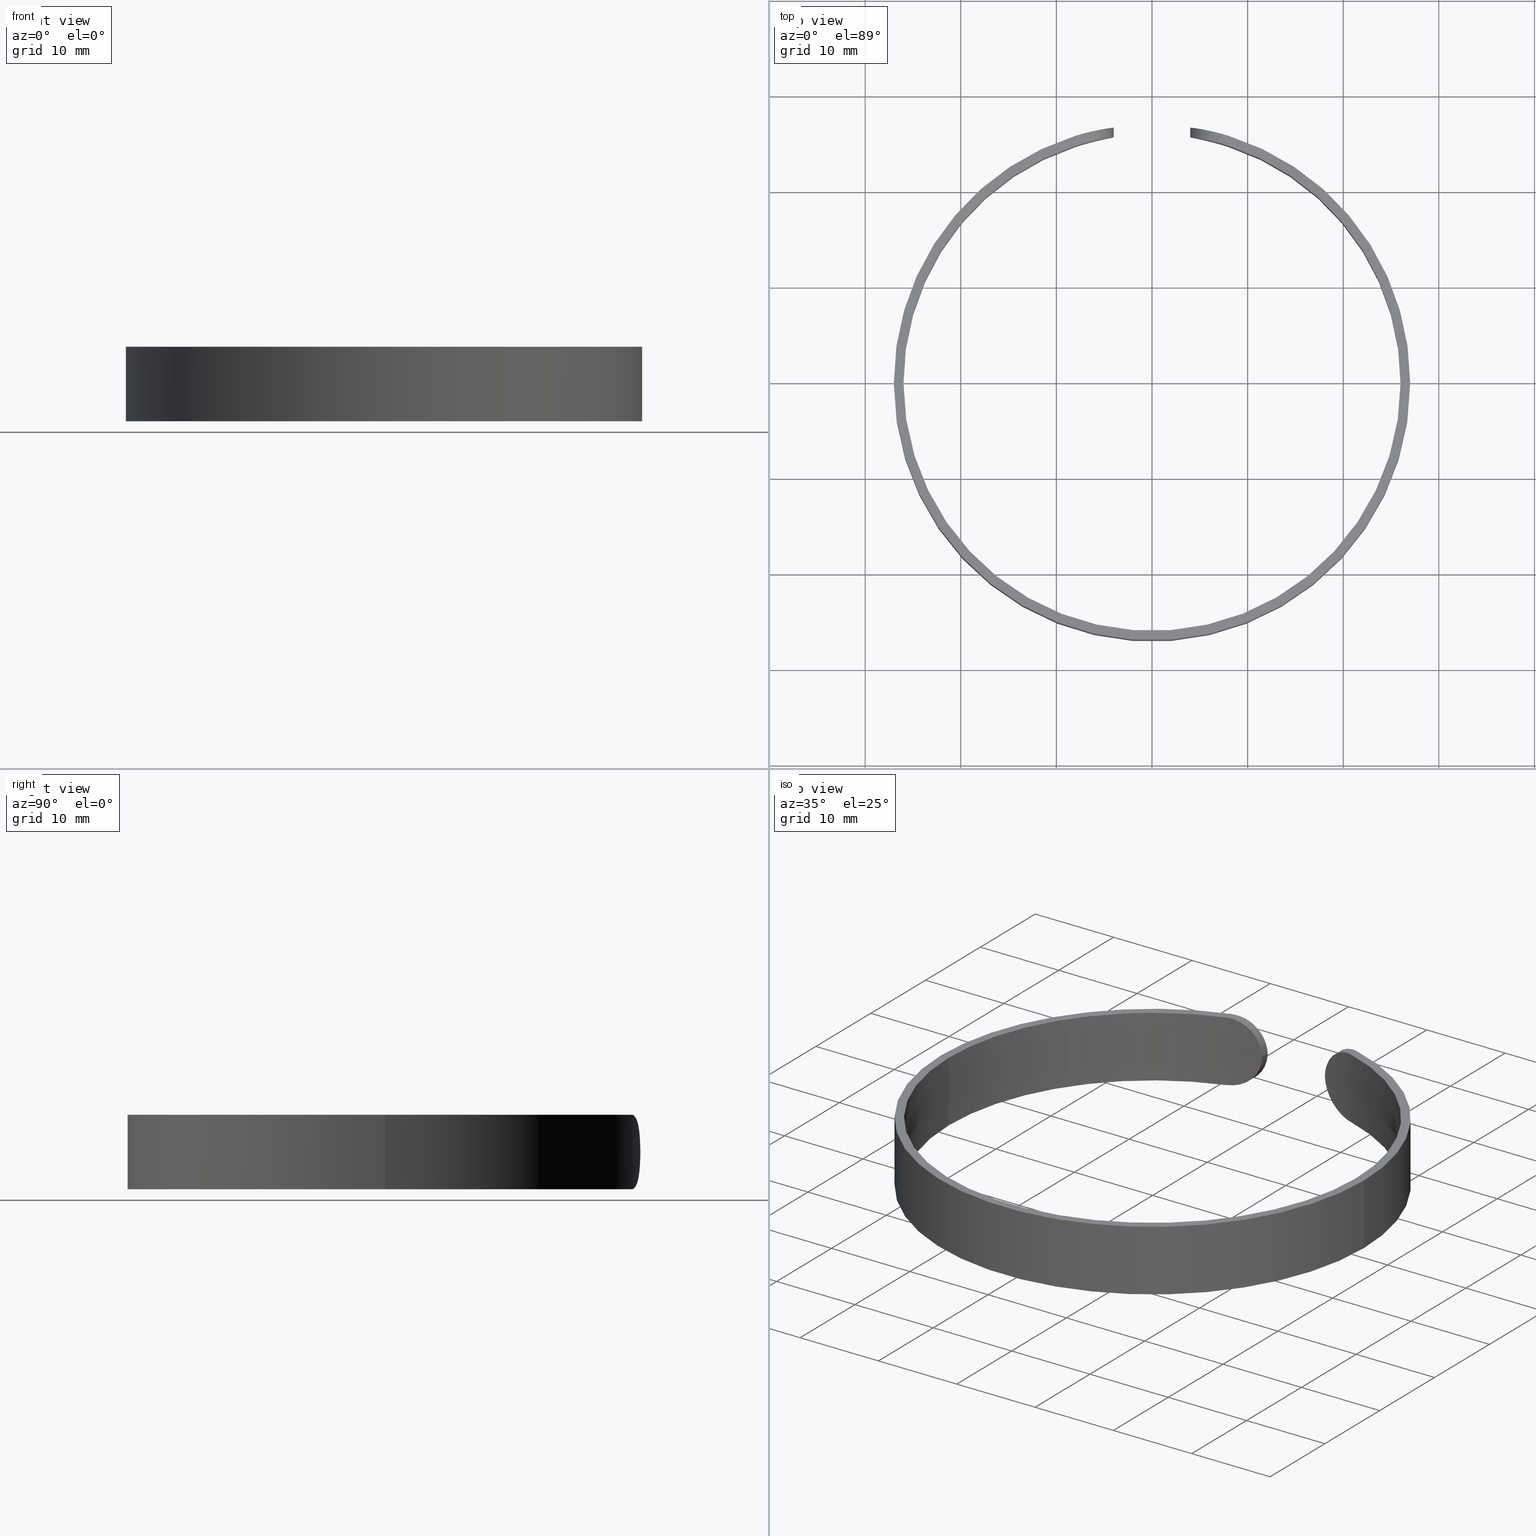
[diagram: canonical four-view strip — front | top / right | iso, engineering-drawing reading convention]
A machine part, canonical four-view strip (front | top / right | iso — engineering-drawing reading convention). The complete STEP part file that produces these views, byte-faithful:
ISO-10303-21;
HEADER;
FILE_DESCRIPTION (( 'STEP AP203' ),
    '1' );
FILE_NAME ('515000.STEP',
    '2019-09-26T07:17:48',
    ( '' ),
    ( '' ),
    'SwSTEP 2.0',
    'SolidWorks 2016',
    '' );
FILE_SCHEMA (( 'CONFIG_CONTROL_DESIGN' ));
ENDSEC;

DATA;
#1 = EDGE_LOOP ( 'NONE', ( #592, #186, #442, #582, #383, #9, #589, #154 ) ) ;
#2 = PERSON_AND_ORGANIZATION_ROLE ( 'design_owner' ) ;
#3 = PERSON_AND_ORGANIZATION_ROLE ( 'creator' ) ;
#4 = APPLICATION_PROTOCOL_DEFINITION ( 'international standard', 'config_control_design', 1994, #52 ) ;
#5 = PERSON ( 'δָ��', 'δָ��', 'δָ��', ('δָ��'), ('δָ��'), ('δָ��') ) ;
#6 = PERSON_AND_ORGANIZATION ( #5, #153 ) ;
#7 = DIRECTION ( 'NONE',  ( -1.000000000000000000, 5.204170427930421300E-015, 0.0000000000000000000 ) ) ;
#8 = CYLINDRICAL_SURFACE ( 'NONE', #21, 25.99999999999999600 ) ;
#9 = ORIENTED_EDGE ( 'NONE', *, *, #540, .T. ) ;
#10 = ORIENTED_EDGE ( 'NONE', *, *, #355, .T. ) ;
#11 = DIRECTION ( 'NONE',  ( 1.000000000000000000, 0.0000000000000000000, 0.0000000000000000000 ) ) ;
#12 = DIRECTION ( 'NONE',  ( 1.000000000000000000, 0.0000000000000000000, -0.0000000000000000000 ) ) ;
#13 = AXIS2_PLACEMENT_3D ( 'NONE', #501, #200, #353 ) ;
#14 = CARTESIAN_POINT ( 'NONE',  ( 5.049572312465119100, 25.50565188433558500, 6.513281062536298900 ) ) ;
#15 = PLANE ( 'NONE',  #343 ) ;
#16 = APPROVAL_DATE_TIME ( #381, #264 ) ;
#17 = FACE_OUTER_BOUND ( 'NONE', #358, .T. ) ;
#18 = CARTESIAN_POINT ( 'NONE',  ( -4.450187752983521400, 25.61654353332943800, 2.138150791149620900 ) ) ;
#19 = ORIENTED_EDGE ( 'NONE', *, *, #113, .F. ) ;
#20 = CARTESIAN_POINT ( 'NONE',  ( -8.000000000000010700, 24.73863375370595500, 7.799999999999999800 ) ) ;
#21 = AXIS2_PLACEMENT_3D ( 'NONE', #249, #151, #244 ) ;
#22 = CARTESIAN_POINT ( 'NONE',  ( -7.000907081161646100, 26.07784237712200000, 0.1185271067502578100 ) ) ;
#23 = DIRECTION ( 'NONE',  ( -1.000000000000000000, 0.0000000000000000000, 0.0000000000000000000 ) ) ;
#24 = PERSON_AND_ORGANIZATION ( #5, #153 ) ;
#25 = CYLINDRICAL_SURFACE ( 'NONE', #141, 25.99999999999999600 ) ;
#26 = ADVANCED_FACE ( 'NONE', ( #147 ), #627, .T. ) ;
#27 = VERTEX_POINT ( 'NONE', #599 ) ;
#28 = CARTESIAN_POINT ( 'NONE',  ( 27.00000000000000000, 3.306546357697853700E-015, 7.799999999999999800 ) ) ;
#29 = DIRECTION ( 'NONE',  ( -0.0000000000000000000, -0.0000000000000000000, -1.000000000000000000 ) ) ;
#30 = LOCAL_TIME ( 15, 17, 48.00000000000000000, #152 ) ;
#31 = CARTESIAN_POINT ( 'NONE',  ( 5.047872861668781600, 25.50598163043550700, 1.288661607061337000 ) ) ;
#32 = ORIENTED_EDGE ( 'NONE', *, *, #405, .T. ) ;
#33 = VERTEX_POINT ( 'NONE', #245 ) ;
#34 =( GEOMETRIC_REPRESENTATION_CONTEXT ( 3 ) GLOBAL_UNCERTAINTY_ASSIGNED_CONTEXT ( ( #377 ) ) GLOBAL_UNIT_ASSIGNED_CONTEXT ( ( #252, #196, #149 ) ) REPRESENTATION_CONTEXT ( 'NONE', 'WORKASPACE' ) );
#35 = CARTESIAN_POINT ( 'NONE',  ( 4.001250195373553500, 25.72034679967168800, 3.899999999999999900 ) ) ;
#36 = CARTESIAN_POINT ( 'NONE',  ( 7.999999999999986700, 24.73863375370596200, 0.0000000000000000000 ) ) ;
#37 = CARTESIAN_POINT ( 'NONE',  ( 4.237548822465045700, 25.65257616834034600, 2.617273710571744500 ) ) ;
#38 = COORDINATED_UNIVERSAL_TIME_OFFSET ( 8, 0, .AHEAD. ) ;
#39 = VECTOR ( 'NONE', #82, 1000.000000000000000 ) ;
#40 = VERTEX_POINT ( 'NONE', #59 ) ;
#41 = CARTESIAN_POINT ( 'NONE',  ( 4.007819870348314800, 26.70088807542985900, 4.162704865217397900 ) ) ;
#42 = CARTESIAN_POINT ( 'NONE',  ( 7.999999999999994700, 25.78759391645525400, 0.0000000000000000000 ) ) ;
#43 = AXIS2_PLACEMENT_3D ( 'NONE', #449, #542, #248 ) ;
#44 = CARTESIAN_POINT ( 'NONE',  ( 6.058559701304446300, 26.31240341939475500, 0.4933939463681459300 ) ) ;
#45 = PERSON_AND_ORGANIZATION ( #5, #153 ) ;
#46 = LINE ( 'NONE', #398, #279 ) ;
#47 = VERTEX_POINT ( 'NONE', #148 ) ;
#48 = EDGE_CURVE ( 'NONE', #434, #40, #399, .T. ) ;
#49 = B_SPLINE_CURVE_WITH_KNOTS ( 'NONE', 3,
 ( #163, #64, #317, #266, #63, #256, #611, #199, #511, #311, #201, #419, #72, #70, #356, #109, #614, #315 ),
 .UNSPECIFIED., .F., .F.,
 ( 4, 2, 2, 2, 2, 2, 2, 2, 4 ),
 ( 9.879209427596740300E-005, 0.0008800166075160012200, 0.001661241120756035100, 0.002442465633996069200, 0.003223690147236103100, 0.004004914660476136500, 0.004786139173716170800, 0.005567363686956204200, 0.006348588200196238600 ),
 .UNSPECIFIED. ) ;
#50 = CARTESIAN_POINT ( 'NONE',  ( -8.000000000000010700, 24.73863375370595500, 0.0000000000000000000 ) ) ;
#51 = DIRECTION ( 'NONE',  ( 1.000000000000000000, 0.0000000000000000000, 0.0000000000000000000 ) ) ;
#52 = APPLICATION_CONTEXT ( 'configuration controlled 3d designs of mechanical parts and assemblies' ) ;
#53 = B_SPLINE_CURVE_WITH_KNOTS ( 'NONE', 3,
 ( #522, #524, #527, #384, #387, #385, #485, #178, #225, #478, #135, #574, #175, #229, #526, #232, #338, #577 ),
 .UNSPECIFIED., .F., .F.,
 ( 4, 2, 2, 2, 2, 2, 2, 2, 4 ),
 ( 0.0000000000000000000, 0.0007802975029534268400, 0.001560595005906853700, 0.002340892508860280500, 0.003121190011813707400, 0.003901487514767134200, 0.004681785017720561100, 0.005462082520673988300, 0.006242380023627414800 ),
 .UNSPECIFIED. ) ;
#54 = AXIS2_PLACEMENT_3D ( 'NONE', #495, #188, #51 ) ;
#55 = PERSON_AND_ORGANIZATION ( #5, #153 ) ;
#56 = PERSON_AND_ORGANIZATION ( #5, #153 ) ;
#57 = CARTESIAN_POINT ( 'NONE',  ( 7.999999999999774400, -6.859361742516716200E-014, 0.0000000000000000000 ) ) ;
#58 = ORIENTED_EDGE ( 'NONE', *, *, #370, .F. ) ;
#59 = CARTESIAN_POINT ( 'NONE',  ( 27.00000000000000000, 3.306546357697853700E-015, 7.799999999999999800 ) ) ;
#60 = DATE_TIME_ROLE ( 'creation_date' ) ;
#61 = ADVANCED_FACE ( 'NONE', ( #573 ), #173, .T. ) ;
#62 = APPROVAL_STATUS ( 'not_yet_approved' ) ;
#63 = CARTESIAN_POINT ( 'NONE',  ( -4.237548822465086600, 25.65257616834033900, 5.182726289428336100 ) ) ;
#64 = CARTESIAN_POINT ( 'NONE',  ( -4.007827905764338000, 25.68924599503852900, 4.163026181399861700 ) ) ;
#65 = DATE_AND_TIME ( #73, #228 ) ;
#66 = ORIENTED_EDGE ( 'NONE', *, *, #224, .T. ) ;
#67 = ORIENTED_EDGE ( 'NONE', *, *, #48, .T. ) ;
#68 = CARTESIAN_POINT ( 'NONE',  ( 7.748788071919430600, 24.81987087636408500, 7.800000000000000700 ) ) ;
#69 = EDGE_CURVE ( 'NONE', #512, #324, #410, .T. ) ;
#70 = CARTESIAN_POINT ( 'NONE',  ( -6.757004137256932300, 25.10780883567521800, 7.610404396198404700 ) ) ;
#71 = APPROVAL_STATUS ( 'not_yet_approved' ) ;
#72 = CARTESIAN_POINT ( 'NONE',  ( -6.286061220629954400, 25.22983558745895000, 7.423069725790000500 ) ) ;
#73 = CALENDAR_DATE ( 2019, 26, 9 ) ;
#74 = FACE_OUTER_BOUND ( 'NONE', #333, .T. ) ;
#75 = FACE_OUTER_BOUND ( 'NONE', #504, .T. ) ;
#76 = CARTESIAN_POINT ( 'NONE',  ( -4.001250195373561500, 25.69027047101732100, 3.900000000000115800 ) ) ;
#77 = CARTESIAN_POINT ( 'NONE',  ( 0.0000000000000000000, 0.0000000000000000000, 7.799999999999999800 ) ) ;
#78 = CC_DESIGN_PERSON_AND_ORGANIZATION_ASSIGNMENT ( #136, #606, ( #644 ) ) ;
#79 = VERTEX_POINT ( 'NONE', #197 ) ;
#80 = VERTEX_POINT ( 'NONE', #50 ) ;
#81 = DIRECTION ( 'NONE',  ( 1.000000000000000000, 0.0000000000000000000, -0.0000000000000000000 ) ) ;
#82 = DIRECTION ( 'NONE',  ( 5.144521306887717300E-015, 1.000000000000000000, -0.0000000000000000000 ) ) ;
#83 = EDGE_CURVE ( 'NONE', #492, #628, #304, .T. ) ;
#84 = CARTESIAN_POINT ( 'NONE',  ( 5.620082168025788900, 26.40955440872725300, 7.025394363600939100 ) ) ;
#85 = APPROVAL_DATE_TIME ( #242, #421 ) ;
#86 = CARTESIAN_POINT ( 'NONE',  ( 7.003066787533663600, 25.04044279315927900, 0.1180044391545461300 ) ) ;
#87 = LINE ( 'NONE', #473, #39 ) ;
#88 = VERTEX_POINT ( 'NONE', #299 ) ;
#89 = EDGE_CURVE ( 'NONE', #222, #492, #416, .T. ) ;
#90 = CARTESIAN_POINT ( 'NONE',  ( 4.876187300520419000, 25.53910726636712900, 1.488081249797971600 ) ) ;
#91 = DIRECTION ( 'NONE',  ( 1.000000000000000000, 0.0000000000000000000, 0.0000000000000000000 ) ) ;
#92 = EDGE_CURVE ( 'NONE', #221, #79, #46, .T. ) ;
#93 = CARTESIAN_POINT ( 'NONE',  ( 4.238450371291021300, 26.66546340360703800, 2.614994180940160900 ) ) ;
#94 = DESIGN_CONTEXT ( 'detailed design', #457, 'design' ) ;
#95 = LINE ( 'NONE', #107, #193 ) ;
#96 = VERTEX_POINT ( 'NONE', #20 ) ;
#97 = EDGE_LOOP ( 'NONE', ( #350, #477, #341, #161, #467 ) ) ;
#98 = CARTESIAN_POINT ( 'NONE',  ( 4.001250195373559700, 26.70187253497448400, 3.900000000000101200 ) ) ;
#99 = B_SPLINE_CURVE_WITH_KNOTS ( 'NONE', 3,
 ( #476, #371, #570, #275, #215, #269, #623, #267, #223, #326, #622, #126, #626, #322, #22, #423, #630, #121 ),
 .UNSPECIFIED., .F., .F.,
 ( 4, 2, 2, 2, 2, 2, 2, 2, 4 ),
 ( 9.879197971812396700E-005, 0.0008790597157156637800, 0.001659327451713203500, 0.002439595187710743300, 0.003219862923708283000, 0.004000130659705823100, 0.004780398395703363200, 0.005560666131700902500, 0.006340933867698442600 ),
 .UNSPECIFIED. ) ;
#100 = AXIS2_PLACEMENT_3D ( 'NONE', #459, #104, #191 ) ;
#101 = DIRECTION ( 'NONE',  ( -0.0000000000000000000, -0.0000000000000000000, -1.000000000000000000 ) ) ;
#102 = LOCAL_TIME ( 15, 17, 48.00000000000000000, #323 ) ;
#103 = FACE_OUTER_BOUND ( 'NONE', #316, .T. ) ;
#104 = DIRECTION ( 'NONE',  ( -0.0000000000000000000, -0.0000000000000000000, -1.000000000000000000 ) ) ;
#105 = CARTESIAN_POINT ( 'NONE',  ( 0.0000000000000000000, 0.0000000000000000000, 7.799999999999999800 ) ) ;
#106 = PERSON_AND_ORGANIZATION_ROLE ( 'classification_officer' ) ;
#107 = CARTESIAN_POINT ( 'NONE',  ( -4.001250195373564200, 25.72034679967165600, 3.899999999999999900 ) ) ;
#108 = ORIENTED_EDGE ( 'NONE', *, *, #491, .T. ) ;
#109 = CARTESIAN_POINT ( 'NONE',  ( -7.499172835405544500, 24.89636773693817100, 7.776548442524812400 ) ) ;
#110 = ORIENTED_EDGE ( 'NONE', *, *, #604, .T. ) ;
#111 = AXIS2_PLACEMENT_3D ( 'NONE', #641, #235, #91 ) ;
#112 = CARTESIAN_POINT ( 'NONE',  ( -6.061213610281491500, 25.28459243295142000, 0.4919323727709271100 ) ) ;
#113 = EDGE_CURVE ( 'NONE', #324, #139, #533, .T. ) ;
#114 = CARTESIAN_POINT ( 'NONE',  ( -7.008000447809932300, 25.03904123548209900, 0.1168744867649993000 ) ) ;
#115 = COORDINATED_UNIVERSAL_TIME_OFFSET ( 8, 0, .AHEAD. ) ;
#116 = SHAPE_DEFINITION_REPRESENTATION ( #133, #448 ) ;
#117 = ORIENTED_EDGE ( 'NONE', *, *, #560, .F. ) ;
#118 = DIRECTION ( 'NONE',  ( -0.0000000000000000000, -0.0000000000000000000, -1.000000000000000000 ) ) ;
#119 = AXIS2_PLACEMENT_3D ( 'NONE', #580, #282, #637 ) ;
#120 = PLANE ( 'NONE',  #437 ) ;
#121 = CARTESIAN_POINT ( 'NONE',  ( -8.000000000000005300, 25.78759391645525100, 0.0000000000000000000 ) ) ;
#122 = FACE_OUTER_BOUND ( 'NONE', #400, .T. ) ;
#123 = CARTESIAN_POINT ( 'NONE',  ( -8.000000000000007100, 25.78759391645525800, 7.799999999999999800 ) ) ;
#124 = CLOSED_SHELL ( 'NONE', ( #217, #520, #372, #569, #220, #26, #251, #127, #460, #425, #306, #61 ) ) ;
#125 = ORIENTED_EDGE ( 'NONE', *, *, #208, .T. ) ;
#126 = CARTESIAN_POINT ( 'NONE',  ( -6.056225128864209500, 26.31296305685469500, 0.4944448459568383500 ) ) ;
#127 = ADVANCED_FACE ( 'NONE', ( #444 ), #15, .F. ) ;
#128 = CARTESIAN_POINT ( 'NONE',  ( 4.039934813351077700, 26.69610919695563600, 4.421010095181541600 ) ) ;
#129 = CARTESIAN_POINT ( 'NONE',  ( 7.999999999999994700, 25.78759391645525400, 0.0000000000000000000 ) ) ;
#130 = PERSON_AND_ORGANIZATION ( #5, #153 ) ;
#131 = APPROVAL ( #411, 'δָ��' ) ;
#132 = CARTESIAN_POINT ( 'NONE',  ( 6.286061220629906500, 25.22983558745896500, 0.3769302742100142900 ) ) ;
#133 = PRODUCT_DEFINITION_SHAPE ( 'NONE', 'NONE',  #227 ) ;
#134 = CARTESIAN_POINT ( 'NONE',  ( 0.0000000000000000000, 0.0000000000000000000, 7.799999999999999800 ) ) ;
#135 = CARTESIAN_POINT ( 'NONE',  ( -4.879146214224650000, 26.55592315440209100, 6.315529700725425000 ) ) ;
#136 = PERSON_AND_ORGANIZATION ( #5, #153 ) ;
#137 = CARTESIAN_POINT ( 'NONE',  ( 0.0000000000000000000, 0.0000000000000000000, 0.0000000000000000000 ) ) ;
#138 = CIRCLE ( 'NONE', #237, 25.99999999999999600 ) ;
#139 = VERTEX_POINT ( 'NONE', #502 ) ;
#140 = ORIENTED_EDGE ( 'NONE', *, *, #208, .F. ) ;
#141 = AXIS2_PLACEMENT_3D ( 'NONE', #571, #29, #376 ) ;
#142 = CARTESIAN_POINT ( 'NONE',  ( 6.283441498756500800, 26.25980404557259400, 7.421843993786557000 ) ) ;
#143 = APPROVAL_DATE_TIME ( #261, #209 ) ;
#144 = ORIENTED_EDGE ( 'NONE', *, *, #513, .T. ) ;
#145 = CARTESIAN_POINT ( 'NONE',  ( 5.421180410330615400, 26.45084225209853900, 0.9313628374408270400 ) ) ;
#146 = EDGE_CURVE ( 'NONE', #27, #96, #49, .T. ) ;
#147 = FACE_OUTER_BOUND ( 'NONE', #97, .T. ) ;
#148 = CARTESIAN_POINT ( 'NONE',  ( 25.99999999999999600, 3.184081677783117800E-015, 0.0000000000000000000 ) ) ;
#149 =( NAMED_UNIT ( * ) SI_UNIT ( $, .STERADIAN. ) SOLID_ANGLE_UNIT ( ) );
#150 = DIRECTION ( 'NONE',  ( 1.000000000000000000, 0.0000000000000000000, 0.0000000000000000000 ) ) ;
#151 = DIRECTION ( 'NONE',  ( -0.0000000000000000000, -0.0000000000000000000, -1.000000000000000000 ) ) ;
#152 = COORDINATED_UNIVERSAL_TIME_OFFSET ( 8, 0, .AHEAD. ) ;
#153 = ORGANIZATION ( 'δָ��', 'δָ��', '' ) ;
#154 = ORIENTED_EDGE ( 'NONE', *, *, #578, .F. ) ;
#155 = CARTESIAN_POINT ( 'NONE',  ( 0.0000000000000000000, 0.0000000000000000000, 0.0000000000000000000 ) ) ;
#156 = CARTESIAN_POINT ( 'NONE',  ( 0.0000000000000000000, 0.0000000000000000000, 0.0000000000000000000 ) ) ;
#157 = CARTESIAN_POINT ( 'NONE',  ( 4.001250195373553500, 25.69027047101729300, 3.899999999999988800 ) ) ;
#158 = CARTESIAN_POINT ( 'NONE',  ( 5.630160220429139900, 25.38405445988136900, 7.032536242849247700 ) ) ;
#159 = COORDINATED_UNIVERSAL_TIME_OFFSET ( 8, 0, .AHEAD. ) ;
#160 = CARTESIAN_POINT ( 'NONE',  ( -5.049572312465098600, 25.50565188433559500, 1.286718937463738700 ) ) ;
#161 = ORIENTED_EDGE ( 'NONE', *, *, #318, .T. ) ;
#162 = SECURITY_CLASSIFICATION ( '', '', #453 ) ;
#163 = CARTESIAN_POINT ( 'NONE',  ( -4.001250195373561500, 25.69027047101732100, 3.900000000000115800 ) ) ;
#164 = DIRECTION ( 'NONE',  ( 1.000000000000000000, -5.144521306887717300E-015, 0.0000000000000000000 ) ) ;
#165 = LOCAL_TIME ( 15, 17, 48.00000000000000000, #159 ) ;
#166 = CYLINDRICAL_SURFACE ( 'NONE', #586, 4.000000000000000000 ) ;
#167 = ORIENTED_EDGE ( 'NONE', *, *, #360, .T. ) ;
#168 = CARTESIAN_POINT ( 'NONE',  ( 7.999999999999986700, 24.73863375370596200, 7.799999999999999800 ) ) ;
#169 = CARTESIAN_POINT ( 'NONE',  ( 0.0000000000000000000, 0.0000000000000000000, 0.0000000000000000000 ) ) ;
#170 = AXIS2_PLACEMENT_3D ( 'NONE', #568, #474, #426 ) ;
#171 = PERSON_AND_ORGANIZATION ( #5, #153 ) ;
#172 = CARTESIAN_POINT ( 'NONE',  ( 7.499172835405510700, 24.89636773693817100, 0.02345155747518940300 ) ) ;
#173 = CYLINDRICAL_SURFACE ( 'NONE', #386, 4.000000000000000000 ) ;
#174 = ORIENTED_EDGE ( 'NONE', *, *, #395, .F. ) ;
#175 = CARTESIAN_POINT ( 'NONE',  ( -4.449210977561614700, 26.63110815862060600, 5.659944635251636500 ) ) ;
#176 = EDGE_CURVE ( 'NONE', #80, #27, #265, .T. ) ;
#177 = CARTESIAN_POINT ( 'NONE',  ( 5.420193217539927700, 25.42946371523040500, 0.9322634586607856400 ) ) ;
#178 = CARTESIAN_POINT ( 'NONE',  ( -5.627571651187874800, 26.40793738007558400, 7.030643926296924900 ) ) ;
#179 = DATE_AND_TIME ( #439, #165 ) ;
#180 = CC_DESIGN_PERSON_AND_ORGANIZATION_ASSIGNMENT ( #45, #106, ( #162 ) ) ;
#181 = ORIENTED_EDGE ( 'NONE', *, *, #69, .F. ) ;
#182 = CARTESIAN_POINT ( 'NONE',  ( 0.0000000000000000000, 0.0000000000000000000, 7.799999999999999800 ) ) ;
#183 = CARTESIAN_POINT ( 'NONE',  ( 7.748180886082804100, 25.86571492758426400, 7.800000000000001600 ) ) ;
#184 = DIRECTION ( 'NONE',  ( -0.0000000000000000000, -0.0000000000000000000, -1.000000000000000000 ) ) ;
#185 = LOCAL_TIME ( 15, 17, 48.00000000000000000, #38 ) ;
#186 = ORIENTED_EDGE ( 'NONE', *, *, #636, .T. ) ;
#187 = ORIENTED_EDGE ( 'NONE', *, *, #405, .F. ) ;
#188 = DIRECTION ( 'NONE',  ( 0.0000000000000000000, 0.0000000000000000000, 1.000000000000000000 ) ) ;
#189 = CARTESIAN_POINT ( 'NONE',  ( 4.449210977561581800, 26.63110815862059900, 2.140055364748432600 ) ) ;
#190 = PRODUCT_RELATED_PRODUCT_CATEGORY ( 'detail', '', ( #559 ) ) ;
#191 = DIRECTION ( 'NONE',  ( 1.000000000000000000, 0.0000000000000000000, 0.0000000000000000000 ) ) ;
#192 = PERSON_AND_ORGANIZATION ( #5, #153 ) ;
#193 = VECTOR ( 'NONE', #301, 1000.000000000000000 ) ;
#194 = APPROVAL_ROLE ( '' ) ;
#195 = VECTOR ( 'NONE', #327, 1000.000000000000000 ) ;
#196 =( NAMED_UNIT ( * ) PLANE_ANGLE_UNIT ( ) SI_UNIT ( $, .RADIAN. ) );
#197 = CARTESIAN_POINT ( 'NONE',  ( -25.99999999999999600, 0.0000000000000000000, 0.0000000000000000000 ) ) ;
#198 = DATE_TIME_ROLE ( 'classification_date' ) ;
#199 = CARTESIAN_POINT ( 'NONE',  ( -4.876187300520471400, 25.53910726636711500, 6.311918750202077700 ) ) ;
#200 = DIRECTION ( 'NONE',  ( 0.0000000000000000000, 0.0000000000000000000, 1.000000000000000000 ) ) ;
#201 = CARTESIAN_POINT ( 'NONE',  ( -5.622771275691081700, 25.38571494964993000, 7.027365709131633100 ) ) ;
#202 = VECTOR ( 'NONE', #409, 1000.000000000000000 ) ;
#203 = ORIENTED_EDGE ( 'NONE', *, *, #318, .F. ) ;
#204 = ORIENTED_EDGE ( 'NONE', *, *, #224, .F. ) ;
#205 = DATE_TIME_ROLE ( 'creation_date' ) ;
#206 = CARTESIAN_POINT ( 'NONE',  ( 7.500120084267892100, 24.89606103363017200, 7.776537052880254200 ) ) ;
#207 = CARTESIAN_POINT ( 'NONE',  ( 4.581001283526274100, 25.59370388543928200, 5.892402277475245100 ) ) ;
#208 = EDGE_CURVE ( 'NONE', #40, #628, #546, .T. ) ;
#209 = APPROVAL ( #71, 'δָ��' ) ;
#210 = CARTESIAN_POINT ( 'NONE',  ( -7.500120084267905400, 24.89606103363017200, 0.02346294711974794900 ) ) ;
#211 = DATE_AND_TIME ( #597, #284 ) ;
#212 = DIRECTION ( 'NONE',  ( 0.0000000000000000000, 0.0000000000000000000, 1.000000000000000000 ) ) ;
#213 = ORIENTED_EDGE ( 'NONE', *, *, #636, .F. ) ;
#214 = AXIS2_PLACEMENT_3D ( 'NONE', #105, #352, #541 ) ;
#215 = CARTESIAN_POINT ( 'NONE',  ( -4.237022670843992400, 26.66569056190498800, 2.618754189027394200 ) ) ;
#216 = DIRECTION ( 'NONE',  ( 1.000000000000000000, 0.0000000000000000000, 0.0000000000000000000 ) ) ;
#217 = ADVANCED_FACE ( 'NONE', ( #17 ), #303, .T. ) ;
#218 = CARTESIAN_POINT ( 'NONE',  ( -8.000000000000136800, 4.115617045510244500E-014, 3.799999999999999400 ) ) ;
#219 = CIRCLE ( 'NONE', #111, 27.00000000000000000 ) ;
#220 = ADVANCED_FACE ( 'NONE', ( #75 ), #25, .F. ) ;
#221 = VERTEX_POINT ( 'NONE', #624 ) ;
#222 = VERTEX_POINT ( 'NONE', #515 ) ;
#223 = CARTESIAN_POINT ( 'NONE',  ( -5.045906498979330300, 26.52498365252007100, 1.290812935333812000 ) ) ;
#224 = EDGE_CURVE ( 'NONE', #529, #47, #286, .T. ) ;
#225 = CARTESIAN_POINT ( 'NONE',  ( -5.421180410330657100, 26.45084225209853600, 6.868637162559207500 ) ) ;
#226 = CARTESIAN_POINT ( 'NONE',  ( 4.447916046617571300, 26.63132473420645900, 5.657562369933908800 ) ) ;
#227 = PRODUCT_DEFINITION ( 'δ֪', '', #351, #94 ) ;
#228 = LOCAL_TIME ( 15, 17, 48.00000000000000000, #498 ) ;
#229 = CARTESIAN_POINT ( 'NONE',  ( -4.238450371291050600, 26.66546340360703800, 5.185005819059915300 ) ) ;
#230 = FACE_OUTER_BOUND ( 'NONE', #640, .T. ) ;
#231 = ORIENTED_EDGE ( 'NONE', *, *, #92, .T. ) ;
#232 = CARTESIAN_POINT ( 'NONE',  ( -4.040295010326030200, 26.69605699696026900, 4.424523399883498500 ) ) ;
#233 = FACE_OUTER_BOUND ( 'NONE', #456, .T. ) ;
#234 = ORIENTED_EDGE ( 'NONE', *, *, #513, .F. ) ;
#235 = DIRECTION ( 'NONE',  ( 0.0000000000000000000, 0.0000000000000000000, 1.000000000000000000 ) ) ;
#236 = CARTESIAN_POINT ( 'NONE',  ( 7.005985695510541500, 26.07645756370937900, 0.1173611193577188700 ) ) ;
#237 = AXIS2_PLACEMENT_3D ( 'NONE', #182, #184, #538 ) ;
#238 = CARTESIAN_POINT ( 'NONE',  ( 25.99999999999999600, 3.184081677783117800E-015, 7.799999999999999800 ) ) ;
#239 = DIRECTION ( 'NONE',  ( -1.000000000000000000, 8.574202178146136600E-015, 0.0000000000000000000 ) ) ;
#240 = EDGE_CURVE ( 'NONE', #79, #80, #455, .T. ) ;
#241 = PRODUCT ( '515000', '515000', '', ( #539 ) ) ;
#242 = DATE_AND_TIME ( #528, #185 ) ;
#243 = SECURITY_CLASSIFICATION ( '', '', #369 ) ;
#244 = DIRECTION ( 'NONE',  ( -1.000000000000000000, 0.0000000000000000000, 0.0000000000000000000 ) ) ;
#245 = CARTESIAN_POINT ( 'NONE',  ( 4.001250195373559700, 26.70187253497448400, 3.900000000000101200 ) ) ;
#246 = APPROVAL_STATUS ( 'not_yet_approved' ) ;
#247 = AXIS2_PLACEMENT_3D ( 'NONE', #137, #488, #340 ) ;
#248 = DIRECTION ( 'NONE',  ( -1.000000000000000000, 0.0000000000000000000, 0.0000000000000000000 ) ) ;
#249 = CARTESIAN_POINT ( 'NONE',  ( 0.0000000000000000000, 0.0000000000000000000, 7.799999999999999800 ) ) ;
#250 = CALENDAR_DATE ( 2019, 26, 9 ) ;
#251 = ADVANCED_FACE ( 'NONE', ( #517 ), #120, .T. ) ;
#252 =( LENGTH_UNIT ( ) NAMED_UNIT ( * ) SI_UNIT ( .MILLI., .METRE. ) );
#253 = ORIENTED_EDGE ( 'NONE', *, *, #240, .T. ) ;
#254 = CARTESIAN_POINT ( 'NONE',  ( 4.007841382784927300, 25.68924389599750000, 4.163565093734892900 ) ) ;
#255 = DESIGN_CONTEXT ( 'detailed design', #545, 'design' ) ;
#256 = CARTESIAN_POINT ( 'NONE',  ( -4.448865052461508500, 25.61677348614114900, 5.659411584125720700 ) ) ;
#257 = EDGE_CURVE ( 'NONE', #88, #47, #472, .T. ) ;
#258 = PERSON_AND_ORGANIZATION_ROLE ( 'classification_officer' ) ;
#259 = CARTESIAN_POINT ( 'NONE',  ( -6.287753112044554400, 25.22943243977668000, 0.3759984095254784700 ) ) ;
#260 = CARTESIAN_POINT ( 'NONE',  ( 4.156634626645756100, 25.66565511774347300, 4.939287385536518500 ) ) ;
#261 = DATE_AND_TIME ( #278, #415 ) ;
#262 = PERSON_AND_ORGANIZATION ( #5, #153 ) ;
#263 = ORIENTED_EDGE ( 'NONE', *, *, #431, .T. ) ;
#264 = APPROVAL ( #62, 'δָ��' ) ;
#265 = B_SPLINE_CURVE_WITH_KNOTS ( 'NONE', 3,
 ( #418, #469, #210, #114, #463, #259, #112, #466, #468, #160, #509, #561, #18, #562, #616, #320, #367, #76 ),
 .UNSPECIFIED., .F., .F.,
 ( 4, 2, 2, 2, 2, 2, 2, 2, 4 ),
 ( 0.0000000000000000000, 0.0007812524358064777900, 0.001562504871612955600, 0.002343757307419433400, 0.003125009743225911100, 0.003906262179032388500, 0.004687514614838866700, 0.005468767050645344900, 0.006250019486451822300 ),
 .UNSPECIFIED. ) ;
#266 = CARTESIAN_POINT ( 'NONE',  ( -4.154166560795406600, 25.66605230482333200, 4.930264642319098600 ) ) ;
#267 = CARTESIAN_POINT ( 'NONE',  ( -4.874436663139241500, 26.55678682044057100, 1.490285267809224400 ) ) ;
#268 = CC_DESIGN_PERSON_AND_ORGANIZATION_ASSIGNMENT ( #534, #258, ( #243 ) ) ;
#269 = CARTESIAN_POINT ( 'NONE',  ( -4.447916046617535800, 26.63132473420646200, 2.142437630066153600 ) ) ;
#270 = COORDINATED_UNIVERSAL_TIME_OFFSET ( 8, 0, .AHEAD. ) ;
#271 = VECTOR ( 'NONE', #609, 1000.000000000000000 ) ;
#272 = ORIENTED_EDGE ( 'NONE', *, *, #491, .F. ) ;
#273 = VERTEX_POINT ( 'NONE', #123 ) ;
#274 = DIRECTION ( 'NONE',  ( -5.144521306887717300E-015, -1.000000000000000000, 0.0000000000000000000 ) ) ;
#275 = CARTESIAN_POINT ( 'NONE',  ( -4.153831656872918100, 26.67862444201846400, 2.870947788119054600 ) ) ;
#276 = CC_DESIGN_APPROVAL ( #131, ( #392 ) ) ;
#277 = CARTESIAN_POINT ( 'NONE',  ( 4.153831656872943900, 26.67862444201846000, 4.929052211881025200 ) ) ;
#278 = CALENDAR_DATE ( 2019, 26, 9 ) ;
#279 = VECTOR ( 'NONE', #602, 1000.000000000000000 ) ;
#280 = CARTESIAN_POINT ( 'NONE',  ( 5.045906498979364100, 26.52498365252006400, 6.509187064666224200 ) ) ;
#281 = DIRECTION ( 'NONE',  ( -0.0000000000000000000, -0.0000000000000000000, -1.000000000000000000 ) ) ;
#282 = DIRECTION ( 'NONE',  ( -0.0000000000000000000, -0.0000000000000000000, -1.000000000000000000 ) ) ;
#283 = CC_DESIGN_PERSON_AND_ORGANIZATION_ASSIGNMENT ( #581, #450, ( #241 ) ) ;
#284 = LOCAL_TIME ( 15, 17, 48.00000000000000000, #270 ) ;
#285 = CARTESIAN_POINT ( 'NONE',  ( 4.001250195373559700, 26.70187253497448400, 3.900000000000101200 ) ) ;
#286 = LINE ( 'NONE', #566, #366 ) ;
#287 = EDGE_LOOP ( 'NONE', ( #518, #67, #144, #620, #433, #263, #634, #10 ) ) ;
#288 = DIRECTION ( 'NONE',  ( 1.000000000000000000, -8.673617379884035500E-015, 0.0000000000000000000 ) ) ;
#289 = EDGE_CURVE ( 'NONE', #273, #434, #373, .T. ) ;
#290 = CARTESIAN_POINT ( 'NONE',  ( 4.879146214224610900, 26.55592315440209500, 1.484470299274627000 ) ) ;
#291 = CARTESIAN_POINT ( 'NONE',  ( 5.047601220718753700, 26.52466728921124100, 1.288877361755761800 ) ) ;
#292 = COORDINATED_UNIVERSAL_TIME_OFFSET ( 8, 0, .AHEAD. ) ;
#293 = ORIENTED_EDGE ( 'NONE', *, *, #176, .T. ) ;
#294 = CARTESIAN_POINT ( 'NONE',  ( 0.0000000000000000000, 0.0000000000000000000, 7.799999999999999800 ) ) ;
#295 = ORIENTED_EDGE ( 'NONE', *, *, #92, .F. ) ;
#296 = DIRECTION ( 'NONE',  ( 0.0000000000000000000, 0.0000000000000000000, 1.000000000000000000 ) ) ;
#297 = DIRECTION ( 'NONE',  ( -1.000000000000000000, 0.0000000000000000000, 0.0000000000000000000 ) ) ;
#298 = AXIS2_PLACEMENT_3D ( 'NONE', #603, #101, #401 ) ;
#299 = CARTESIAN_POINT ( 'NONE',  ( 7.999999999999986700, 24.73863375370596200, 0.0000000000000000000 ) ) ;
#300 = CARTESIAN_POINT ( 'NONE',  ( 7.999999999999994700, 25.69046515733021300, 7.799999999999999800 ) ) ;
#301 = DIRECTION ( 'NONE',  ( -5.144521306887717300E-015, -1.000000000000000000, 0.0000000000000000000 ) ) ;
#302 = APPROVAL_PERSON_ORGANIZATION ( #192, #264, #413 ) ;
#303 = CYLINDRICAL_SURFACE ( 'NONE', #427, 27.00000000000000000 ) ;
#304 = CIRCLE ( 'NONE', #54, 27.00000000000000000 ) ;
#305 = DIRECTION ( 'NONE',  ( 0.0000000000000000000, 0.0000000000000000000, 1.000000000000000000 ) ) ;
#306 = ADVANCED_FACE ( 'NONE', ( #475 ), #166, .T. ) ;
#307 = CARTESIAN_POINT ( 'NONE',  ( -27.00000000000000000, 0.0000000000000000000, 7.799999999999999800 ) ) ;
#308 = B_SPLINE_CURVE_WITH_KNOTS ( 'NONE', 3,
 ( #563, #328, #635, #631, #37, #440, #486, #90, #31, #177, #430, #382, #132, #435, #86, #172, #438, #36 ),
 .UNSPECIFIED., .F., .F.,
 ( 4, 2, 2, 2, 2, 2, 2, 2, 4 ),
 ( 9.879209427586440300E-005, 0.0008800166075159095000, 0.001661241120755954400, 0.002442465633995999400, 0.003223690147236044500, 0.004004914660476089700, 0.004786139173716134400, 0.005567363686956180000, 0.006348588200196224700 ),
 .UNSPECIFIED. ) ;
#309 = CARTESIAN_POINT ( 'NONE',  ( 4.040394101418805800, 25.68421070517065600, 4.425263358803368500 ) ) ;
#310 = APPROVAL_STATUS ( 'not_yet_approved' ) ;
#311 = CARTESIAN_POINT ( 'NONE',  ( -5.420193217539980100, 25.42946371523039800, 6.867736541339247900 ) ) ;
#312 = CALENDAR_DATE ( 2019, 26, 9 ) ;
#313 = CC_DESIGN_PERSON_AND_ORGANIZATION_ASSIGNMENT ( #130, #3, ( #392 ) ) ;
#314 = VECTOR ( 'NONE', #547, 1000.000000000000000 ) ;
#315 = CARTESIAN_POINT ( 'NONE',  ( -8.000000000000010700, 24.73863375370595500, 7.799999999999999800 ) ) ;
#316 = EDGE_LOOP ( 'NONE', ( #272, #213, #337, #391 ) ) ;
#317 = CARTESIAN_POINT ( 'NONE',  ( -4.040012748647282800, 25.68426829246895000, 4.421638136623629500 ) ) ;
#318 = EDGE_CURVE ( 'NONE', #465, #222, #99, .T. ) ;
#319 = APPROVAL_ROLE ( '' ) ;
#320 = CARTESIAN_POINT ( 'NONE',  ( -4.040394101418800500, 25.68421070517065600, 3.374736641196727200 ) ) ;
#321 = PERSON_AND_ORGANIZATION_ROLE ( 'creator' ) ;
#322 = CARTESIAN_POINT ( 'NONE',  ( -6.754649625995836200, 26.14256402899685800, 0.1903504820670497400 ) ) ;
#323 = COORDINATED_UNIVERSAL_TIME_OFFSET ( 8, 0, .AHEAD. ) ;
#324 = VERTEX_POINT ( 'NONE', #168 ) ;
#325 = CC_DESIGN_DATE_AND_TIME_ASSIGNMENT ( #347, #205, ( #227 ) ) ;
#326 = CARTESIAN_POINT ( 'NONE',  ( -5.417826170023987600, 26.45152339193910900, 0.9342633387855746600 ) ) ;
#327 = DIRECTION ( 'NONE',  ( -0.0000000000000000000, -0.0000000000000000000, -1.000000000000000000 ) ) ;
#328 = CARTESIAN_POINT ( 'NONE',  ( 4.007827905764317600, 25.68924599503852900, 3.636973818600236300 ) ) ;
#329 = CIRCLE ( 'NONE', #247, 27.00000000000000000 ) ;
#330 = DIRECTION ( 'NONE',  ( 0.0000000000000000000, 0.0000000000000000000, 1.000000000000000000 ) ) ;
#331 = ORIENTED_EDGE ( 'NONE', *, *, #604, .F. ) ;
#332 = EDGE_CURVE ( 'NONE', #221, #96, #587, .T. ) ;
#333 = EDGE_LOOP ( 'NONE', ( #181, #187, #174, #19 ) ) ;
#334 = AXIS2_PLACEMENT_3D ( 'NONE', #294, #532, #297 ) ;
#335 = DIRECTION ( 'NONE',  ( 1.000000000000000000, 0.0000000000000000000, 0.0000000000000000000 ) ) ;
#336 = PERSON_AND_ORGANIZATION ( #5, #153 ) ;
#337 = ORIENTED_EDGE ( 'NONE', *, *, #360, .F. ) ;
#338 = CARTESIAN_POINT ( 'NONE',  ( -4.007833048510700100, 26.70088610069473800, 4.163231826960260800 ) ) ;
#339 = CARTESIAN_POINT ( 'NONE',  ( 8.000000000000003600, 26.70205984563734000, 4.000000000000000000 ) ) ;
#340 = DIRECTION ( 'NONE',  ( 1.000000000000000000, 0.0000000000000000000, 0.0000000000000000000 ) ) ;
#341 = ORIENTED_EDGE ( 'NONE', *, *, #370, .T. ) ;
#342 = DIRECTION ( 'NONE',  ( 8.574202178146136600E-015, 1.000000000000000000, -0.0000000000000000000 ) ) ;
#343 = AXIS2_PLACEMENT_3D ( 'NONE', #155, #461, #12 ) ;
#344 = CARTESIAN_POINT ( 'NONE',  ( 4.156288639444874800, 26.67824408953929400, 2.861941979075576500 ) ) ;
#345 = CARTESIAN_POINT ( 'NONE',  ( -4.001250195373558900, 26.70187253497445600, 3.900000000000004800 ) ) ;
#346 = DIRECTION ( 'NONE',  ( 5.144521306887717300E-015, 1.000000000000000000, -0.0000000000000000000 ) ) ;
#347 = DATE_AND_TIME ( #312, #102 ) ;
#348 = CIRCLE ( 'NONE', #100, 25.99999999999999600 ) ;
#349 = APPROVAL_ROLE ( '' ) ;
#350 = ORIENTED_EDGE ( 'NONE', *, *, #619, .F. ) ;
#351 = PRODUCT_DEFINITION_FORMATION_WITH_SPECIFIED_SOURCE ( '�κ�', '', #241, .NOT_KNOWN. ) ;
#352 = DIRECTION ( 'NONE',  ( 0.0000000000000000000, 0.0000000000000000000, 1.000000000000000000 ) ) ;
#353 = DIRECTION ( 'NONE',  ( 1.000000000000000000, 0.0000000000000000000, 0.0000000000000000000 ) ) ;
#354 = APPLICATION_PROTOCOL_DEFINITION ( 'international standard', 'config_control_design', 1994, #457 ) ;
#355 = EDGE_CURVE ( 'NONE', #96, #273, #87, .T. ) ;
#356 = CARTESIAN_POINT ( 'NONE',  ( -7.003066787533702700, 25.04044279315927600, 7.681995560845457800 ) ) ;
#357 = EDGE_LOOP ( 'NONE', ( #557, #537, #331, #58 ) ) ;
#358 = EDGE_LOOP ( 'NONE', ( #234, #125, #375, #108, #32 ) ) ;
#359 = CARTESIAN_POINT ( 'NONE',  ( 6.287753112044561600, 25.22943243977667300, 7.424001590474534700 ) ) ;
#360 = EDGE_CURVE ( 'NONE', #139, #88, #308, .T. ) ;
#361 = DATE_TIME_ROLE ( 'classification_date' ) ;
#362 = CARTESIAN_POINT ( 'NONE',  ( 6.061213610281501300, 25.28459243295142400, 7.308067627229085900 ) ) ;
#363 = CARTESIAN_POINT ( 'NONE',  ( 7.008000447809927800, 25.03904123548209200, 7.683125513235004300 ) ) ;
#364 = PERSON_AND_ORGANIZATION ( #5, #153 ) ;
#365 = CC_DESIGN_DATE_AND_TIME_ASSIGNMENT ( #407, #60, ( #392 ) ) ;
#366 = VECTOR ( 'NONE', #118, 1000.000000000000000 ) ;
#367 = CARTESIAN_POINT ( 'NONE',  ( -4.007841382784927300, 25.68924389599749200, 3.636434906265205500 ) ) ;
#368 = ORIENTED_EDGE ( 'NONE', *, *, #257, .T. ) ;
#369 = SECURITY_CLASSIFICATION_LEVEL ( 'unclassified' ) ;
#370 = EDGE_CURVE ( 'NONE', #273, #465, #53, .T. ) ;
#371 = CARTESIAN_POINT ( 'NONE',  ( -4.007819870348300600, 26.70088807542985900, 3.637295134782700100 ) ) ;
#372 = ADVANCED_FACE ( 'NONE', ( #122 ), #544, .F. ) ;
#373 = CIRCLE ( 'NONE', #447, 27.00000000000000000 ) ;
#374 = ORIENTED_EDGE ( 'NONE', *, *, #578, .T. ) ;
#375 = ORIENTED_EDGE ( 'NONE', *, *, #523, .T. ) ;
#376 = DIRECTION ( 'NONE',  ( -1.000000000000000000, 0.0000000000000000000, 0.0000000000000000000 ) ) ;
#377 = UNCERTAINTY_MEASURE_WITH_UNIT (LENGTH_MEASURE( 1.000000000000000100E-005 ), #252, 'distance_accuracy_value', 'NONE');
#378 = CARTESIAN_POINT ( 'NONE',  ( 0.0000000000000000000, 0.0000000000000000000, 7.799999999999999800 ) ) ;
#379 = APPROVAL ( #310, 'δָ��' ) ;
#380 = DIRECTION ( 'NONE',  ( -8.574202178146136600E-015, -1.000000000000000000, 0.0000000000000000000 ) ) ;
#381 = DATE_AND_TIME ( #645, #30 ) ;
#382 = CARTESIAN_POINT ( 'NONE',  ( 6.058904020210269100, 25.28516882279998200, 0.4929710258678577900 ) ) ;
#383 = ORIENTED_EDGE ( 'NONE', *, *, #89, .F. ) ;
#384 = CARTESIAN_POINT ( 'NONE',  ( -7.005985695510567300, 26.07645756370937200, 7.682638880642283400 ) ) ;
#385 = CARTESIAN_POINT ( 'NONE',  ( -6.285135173327757800, 26.25941638700654900, 7.422778501177187800 ) ) ;
#386 = AXIS2_PLACEMENT_3D ( 'NONE', #497, #346, #7 ) ;
#387 = CARTESIAN_POINT ( 'NONE',  ( -6.760020303027443900, 26.14119351972755800, 7.611526701132380200 ) ) ;
#388 = LOCAL_TIME ( 15, 17, 48.00000000000000000, #115 ) ;
#389 = VECTOR ( 'NONE', #583, 1000.000000000000000 ) ;
#390 = CARTESIAN_POINT ( 'NONE',  ( 6.760020303027413700, 26.14119351972756200, 0.1884732988676267900 ) ) ;
#391 = ORIENTED_EDGE ( 'NONE', *, *, #395, .T. ) ;
#392 = PRODUCT_DEFINITION ( 'δ֪', '', #644, #255 ) ;
#393 = CC_DESIGN_PERSON_AND_ORGANIZATION_ASSIGNMENT ( #516, #554, ( #351 ) ) ;
#394 = CARTESIAN_POINT ( 'NONE',  ( 7.748133600730116500, 25.86572959676287900, 5.336307567702090300E-017 ) ) ;
#395 = EDGE_CURVE ( 'NONE', #139, #33, #625, .T. ) ;
#396 = CARTESIAN_POINT ( 'NONE',  ( 4.579727380738215300, 26.60919426590005800, 1.909700203954421100 ) ) ;
#397 = APPROVAL_DATE_TIME ( #211, #379 ) ;
#398 = CARTESIAN_POINT ( 'NONE',  ( -25.99999999999999600, 0.0000000000000000000, 7.799999999999999800 ) ) ;
#399 = CIRCLE ( 'NONE', #214, 27.00000000000000000 ) ;
#400 = EDGE_LOOP ( 'NONE', ( #503, #66, #374, #295 ) ) ;
#401 = DIRECTION ( 'NONE',  ( 1.000000000000000000, 0.0000000000000000000, 0.0000000000000000000 ) ) ;
#402 = CC_DESIGN_APPROVAL ( #264, ( #227 ) ) ;
#403 = PERSON_AND_ORGANIZATION_ROLE ( 'design_supplier' ) ;
#404 = APPLICATION_PROTOCOL_DEFINITION ( 'international standard', 'config_control_design', 1994, #548 ) ;
#405 = EDGE_CURVE ( 'NONE', #33, #512, #406, .T. ) ;
#406 = B_SPLINE_CURVE_WITH_KNOTS ( 'NONE', 3,
 ( #285, #41, #128, #277, #480, #226, #436, #576, #280, #632, #84, #481, #142, #489, #494, #590, #183, #584 ),
 .UNSPECIFIED., .F., .F.,
 ( 4, 2, 2, 2, 2, 2, 2, 2, 4 ),
 ( 9.879197971822697900E-005, 0.0008790597157157524700, 0.001659327451713277800, 0.002439595187710803600, 0.003219862923708329000, 0.004000130659705854400, 0.004780398395703379700, 0.005560666131700905100, 0.006340933867698430500 ),
 .UNSPECIFIED. ) ;
#407 = DATE_AND_TIME ( #250, #454 ) ;
#408 = LINE ( 'NONE', #307, #202 ) ;
#409 = DIRECTION ( 'NONE',  ( -0.0000000000000000000, -0.0000000000000000000, -1.000000000000000000 ) ) ;
#410 = LINE ( 'NONE', #300, #314 ) ;
#411 = APPROVAL_STATUS ( 'not_yet_approved' ) ;
#412 = CARTESIAN_POINT ( 'NONE',  ( 6.762369307743046700, 25.10638288915742000, 7.612275856054831800 ) ) ;
#413 = APPROVAL_ROLE ( '' ) ;
#414 = CC_DESIGN_DATE_AND_TIME_ASSIGNMENT ( #179, #198, ( #162 ) ) ;
#415 = LOCAL_TIME ( 15, 17, 48.00000000000000000, #292 ) ;
#416 = CIRCLE ( 'NONE', #525, 27.00000000000000000 ) ;
#417 = VERTEX_POINT ( 'NONE', #129 ) ;
#418 = CARTESIAN_POINT ( 'NONE',  ( -8.000000000000010700, 24.73863375370595500, 0.0000000000000000000 ) ) ;
#419 = CARTESIAN_POINT ( 'NONE',  ( -6.058904020210318800, 25.28516882279997400, 7.307028974132160600 ) ) ;
#420 = DATE_AND_TIME ( #617, #510 ) ;
#421 = APPROVAL ( #613, 'δָ��' ) ;
#422 = VECTOR ( 'NONE', #643, 1000.000000000000000 ) ;
#423 = CARTESIAN_POINT ( 'NONE',  ( -7.497956048065234700, 25.93929872040416700, 0.02357316780112389200 ) ) ;
#424 = ORIENTED_EDGE ( 'NONE', *, *, #332, .F. ) ;
#425 = ADVANCED_FACE ( 'NONE', ( #103 ), #618, .T. ) ;
#426 = DIRECTION ( 'NONE',  ( 1.000000000000000000, 0.0000000000000000000, 0.0000000000000000000 ) ) ;
#427 = AXIS2_PLACEMENT_3D ( 'NONE', #505, #552, #23 ) ;
#428 = MANIFOLD_SOLID_BREP ( 'Բ��1', #124 ) ;
#429 = CC_DESIGN_APPROVAL ( #209, ( #243 ) ) ;
#430 = CARTESIAN_POINT ( 'NONE',  ( 5.622771275691029300, 25.38571494964994100, 0.7726342908683954100 ) ) ;
#431 = EDGE_CURVE ( 'NONE', #529, #221, #138, .T. ) ;
#432 = APPROVAL_DATE_TIME ( #65, #521 ) ;
#433 = ORIENTED_EDGE ( 'NONE', *, *, #560, .T. ) ;
#434 = VERTEX_POINT ( 'NONE', #642 ) ;
#435 = CARTESIAN_POINT ( 'NONE',  ( 6.757004137256891400, 25.10780883567523200, 0.1895956038016023100 ) ) ;
#436 = CARTESIAN_POINT ( 'NONE',  ( 4.575419281351804200, 26.60993418648599700, 5.883281332697667000 ) ) ;
#437 = AXIS2_PLACEMENT_3D ( 'NONE', #77, #330, #81 ) ;
#438 = CARTESIAN_POINT ( 'NONE',  ( 7.748838390612784900, 24.81985460426311000, -3.743885626864008500E-016 ) ) ;
#439 = CALENDAR_DATE ( 2019, 26, 9 ) ;
#440 = CARTESIAN_POINT ( 'NONE',  ( 4.448865052461462400, 25.61677348614116300, 2.140588415874348400 ) ) ;
#441 = COORDINATED_UNIVERSAL_TIME_OFFSET ( 8, 0, .AHEAD. ) ;
#442 = ORIENTED_EDGE ( 'NONE', *, *, #523, .F. ) ;
#443 = DATE_AND_TIME ( #572, #388 ) ;
#444 = FACE_OUTER_BOUND ( 'NONE', #1, .T. ) ;
#445 = CARTESIAN_POINT ( 'NONE',  ( 6.285135173327724100, 26.25941638700655600, 0.3772214988228275200 ) ) ;
#446 = ORIENTED_EDGE ( 'NONE', *, *, #83, .T. ) ;
#447 = AXIS2_PLACEMENT_3D ( 'NONE', #378, #212, #216 ) ;
#448 = ADVANCED_BREP_SHAPE_REPRESENTATION ( '515000', ( #428, #13 ), #34 ) ;
#449 = CARTESIAN_POINT ( 'NONE',  ( 0.0000000000000000000, 0.0000000000000000000, 7.799999999999999800 ) ) ;
#450 = PERSON_AND_ORGANIZATION_ROLE ( 'design_owner' ) ;
#451 = CARTESIAN_POINT ( 'NONE',  ( 7.999999999999986700, 24.73863375370596200, 7.799999999999999800 ) ) ;
#452 = PRODUCT_RELATED_PRODUCT_CATEGORY ( 'detail', '', ( #241 ) ) ;
#453 = SECURITY_CLASSIFICATION_LEVEL ( 'unclassified' ) ;
#454 = LOCAL_TIME ( 15, 17, 48.00000000000000000, #471 ) ;
#455 = CIRCLE ( 'NONE', #575, 25.99999999999999600 ) ;
#456 = EDGE_LOOP ( 'NONE', ( #424, #231, #253, #293, #558 ) ) ;
#457 = APPLICATION_CONTEXT ( 'configuration controlled 3d designs of mechanical parts and assemblies' ) ;
#458 = CC_DESIGN_APPROVAL ( #421, ( #351 ) ) ;
#459 = CARTESIAN_POINT ( 'NONE',  ( 0.0000000000000000000, 0.0000000000000000000, 0.0000000000000000000 ) ) ;
#460 = ADVANCED_FACE ( 'NONE', ( #74 ), #639, .T. ) ;
#461 = DIRECTION ( 'NONE',  ( 0.0000000000000000000, 0.0000000000000000000, 1.000000000000000000 ) ) ;
#462 = CC_DESIGN_APPROVAL ( #379, ( #644 ) ) ;
#463 = CARTESIAN_POINT ( 'NONE',  ( -6.762369307743045800, 25.10638288915742700, 0.1877241439451747000 ) ) ;
#464 = LINE ( 'NONE', #57, #271 ) ;
#465 = VERTEX_POINT ( 'NONE', #345 ) ;
#466 = CARTESIAN_POINT ( 'NONE',  ( -5.630160220429121200, 25.38405445988137300, 0.7674637571507733100 ) ) ;
#467 = ORIENTED_EDGE ( 'NONE', *, *, #89, .T. ) ;
#468 = CARTESIAN_POINT ( 'NONE',  ( -5.423629199670577000, 25.42873777615017200, 0.9292946798983808800 ) ) ;
#469 = CARTESIAN_POINT ( 'NONE',  ( -7.748788071919452000, 24.81987087636408200, -1.334076891925522600E-017 ) ) ;
#470 = AXIS2_PLACEMENT_3D ( 'NONE', #134, #281, #335 ) ;
#471 = COORDINATED_UNIVERSAL_TIME_OFFSET ( 8, 0, .AHEAD. ) ;
#472 = CIRCLE ( 'NONE', #170, 25.99999999999999600 ) ;
#473 = CARTESIAN_POINT ( 'NONE',  ( -8.000000000000000000, 26.70205984563740000, 7.799999999999999800 ) ) ;
#474 = DIRECTION ( 'NONE',  ( -0.0000000000000000000, -0.0000000000000000000, -1.000000000000000000 ) ) ;
#475 = FACE_OUTER_BOUND ( 'NONE', #357, .T. ) ;
#476 = CARTESIAN_POINT ( 'NONE',  ( -4.001250195373558900, 26.70187253497445600, 3.900000000000004800 ) ) ;
#477 = ORIENTED_EDGE ( 'NONE', *, *, #289, .F. ) ;
#478 = CARTESIAN_POINT ( 'NONE',  ( -5.047601220718795500, 26.52466728921122700, 6.511122638244282600 ) ) ;
#479 = CC_DESIGN_PERSON_AND_ORGANIZATION_ASSIGNMENT ( #336, #403, ( #644 ) ) ;
#480 = CARTESIAN_POINT ( 'NONE',  ( 4.237022670844022600, 26.66569056190498800, 5.181245810972681600 ) ) ;
#481 = CARTESIAN_POINT ( 'NONE',  ( 6.056225128864234400, 26.31296305685469200, 7.305555154043175600 ) ) ;
#482 = APPROVAL_PERSON_ORGANIZATION ( #24, #421, #506 ) ;
#483 = LINE ( 'NONE', #530, #422 ) ;
#484 = ORIENTED_EDGE ( 'NONE', *, *, #113, .T. ) ;
#485 = CARTESIAN_POINT ( 'NONE',  ( -6.058559701304482700, 26.31240341939474400, 7.306606053631872700 ) ) ;
#486 = CARTESIAN_POINT ( 'NONE',  ( 4.576615546530158300, 25.59448754501682500, 1.914722926614445900 ) ) ;
#487 = AXIS2_PLACEMENT_3D ( 'NONE', #339, #380, #288 ) ;
#488 = DIRECTION ( 'NONE',  ( 0.0000000000000000000, 0.0000000000000000000, 1.000000000000000000 ) ) ;
#489 = CARTESIAN_POINT ( 'NONE',  ( 6.754649625995846800, 26.14256402899685100, 7.609649517932955300 ) ) ;
#490 = CIRCLE ( 'NONE', #298, 25.99999999999999600 ) ;
#491 = EDGE_CURVE ( 'NONE', #417, #33, #605, .T. ) ;
#492 = VERTEX_POINT ( 'NONE', #531 ) ;
#493 = CARTESIAN_POINT ( 'NONE',  ( 7.999999999999774400, -6.859361742516716200E-014, 3.799999999999999400 ) ) ;
#494 = CARTESIAN_POINT ( 'NONE',  ( 7.000907081161654900, 26.07784237712200000, 7.681472893249745600 ) ) ;
#495 = CARTESIAN_POINT ( 'NONE',  ( 0.0000000000000000000, 0.0000000000000000000, 0.0000000000000000000 ) ) ;
#496 = CARTESIAN_POINT ( 'NONE',  ( 7.999999999999994700, 25.78759391645525400, 7.799999999999999800 ) ) ;
#497 = CARTESIAN_POINT ( 'NONE',  ( -8.000000000000000000, 26.70205984563739700, 4.000000000000000000 ) ) ;
#498 = COORDINATED_UNIVERSAL_TIME_OFFSET ( 8, 0, .AHEAD. ) ;
#499 = APPLICATION_PROTOCOL_DEFINITION ( 'international standard', 'config_control_design', 1994, #545 ) ;
#500 = CC_DESIGN_PERSON_AND_ORGANIZATION_ASSIGNMENT ( #364, #621, ( #227 ) ) ;
#501 = CARTESIAN_POINT ( 'NONE',  ( 0.0000000000000000000, 0.0000000000000000000, 0.0000000000000000000 ) ) ;
#502 = CARTESIAN_POINT ( 'NONE',  ( 4.001250195373553500, 25.69027047101729300, 3.899999999999988800 ) ) ;
#503 = ORIENTED_EDGE ( 'NONE', *, *, #431, .F. ) ;
#504 = EDGE_LOOP ( 'NONE', ( #204, #117, #484, #167, #368 ) ) ;
#505 = CARTESIAN_POINT ( 'NONE',  ( 0.0000000000000000000, 0.0000000000000000000, 7.799999999999999800 ) ) ;
#506 = APPROVAL_ROLE ( '' ) ;
#507 = CARTESIAN_POINT ( 'NONE',  ( 5.423629199670597400, 25.42873777615016500, 6.870705320101646600 ) ) ;
#508 = CC_DESIGN_APPROVAL ( #521, ( #162 ) ) ;
#509 = CARTESIAN_POINT ( 'NONE',  ( -4.880877945693809400, 25.53821218907970800, 1.482307182285093100 ) ) ;
#510 = LOCAL_TIME ( 15, 17, 48.00000000000000000, #441 ) ;
#511 = CARTESIAN_POINT ( 'NONE',  ( -5.047872861668835800, 25.50598163043549200, 6.511338392938705900 ) ) ;
#512 = VERTEX_POINT ( 'NONE', #496 ) ;
#513 = EDGE_CURVE ( 'NONE', #40, #512, #219, .T. ) ;
#514 = DIRECTION ( 'NONE',  ( -0.0000000000000000000, -0.0000000000000000000, -1.000000000000000000 ) ) ;
#515 = CARTESIAN_POINT ( 'NONE',  ( -8.000000000000005300, 25.78759391645525100, 0.0000000000000000000 ) ) ;
#516 = PERSON_AND_ORGANIZATION ( #5, #153 ) ;
#517 = FACE_OUTER_BOUND ( 'NONE', #287, .T. ) ;
#518 = ORIENTED_EDGE ( 'NONE', *, *, #289, .T. ) ;
#519 = DIRECTION ( 'NONE',  ( 1.000000000000000000, 0.0000000000000000000, 0.0000000000000000000 ) ) ;
#520 = ADVANCED_FACE ( 'NONE', ( #230 ), #608, .T. ) ;
#521 = APPROVAL ( #246, 'δָ��' ) ;
#522 = CARTESIAN_POINT ( 'NONE',  ( -8.000000000000007100, 25.78759391645525800, 7.799999999999999800 ) ) ;
#523 = EDGE_CURVE ( 'NONE', #628, #417, #329, .T. ) ;
#524 = CARTESIAN_POINT ( 'NONE',  ( -7.748133600730132500, 25.86572959676287200, 7.800000000000000700 ) ) ;
#525 = AXIS2_PLACEMENT_3D ( 'NONE', #594, #296, #150 ) ;
#526 = CARTESIAN_POINT ( 'NONE',  ( -4.156288639444895200, 26.67824408953929400, 4.938058020924509100 ) ) ;
#527 = CARTESIAN_POINT ( 'NONE',  ( -7.498938292582956900, 25.93899379547455900, 7.776416260952206700 ) ) ;
#528 = CALENDAR_DATE ( 2019, 26, 9 ) ;
#529 = VERTEX_POINT ( 'NONE', #238 ) ;
#530 = CARTESIAN_POINT ( 'NONE',  ( -8.000000000000136800, 4.115617045510244500E-014, 0.0000000000000000000 ) ) ;
#531 = CARTESIAN_POINT ( 'NONE',  ( -27.00000000000000000, 0.0000000000000000000, 0.0000000000000000000 ) ) ;
#532 = DIRECTION ( 'NONE',  ( -0.0000000000000000000, -0.0000000000000000000, -1.000000000000000000 ) ) ;
#533 = B_SPLINE_CURVE_WITH_KNOTS ( 'NONE', 3,
 ( #451, #68, #206, #363, #412, #359, #362, #158, #507, #14, #555, #207, #549, #607, #260, #309, #254, #157 ),
 .UNSPECIFIED., .F., .F.,
 ( 4, 2, 2, 2, 2, 2, 2, 2, 4 ),
 ( 0.0000000000000000000, 0.0007812524358064630400, 0.001562504871612926100, 0.002343757307419389100, 0.003125009743225852200, 0.003906262179032315600, 0.004687514614838778200, 0.005468767050645240900, 0.006250019486451704300 ),
 .UNSPECIFIED. ) ;
#534 = PERSON_AND_ORGANIZATION ( #5, #153 ) ;
#535 = AXIS2_PLACEMENT_3D ( 'NONE', #493, #342, #239 ) ;
#536 = EDGE_LOOP ( 'NONE', ( #612, #610, #203, #110 ) ) ;
#537 = ORIENTED_EDGE ( 'NONE', *, *, #146, .F. ) ;
#538 = DIRECTION ( 'NONE',  ( 1.000000000000000000, 0.0000000000000000000, 0.0000000000000000000 ) ) ;
#539 = MECHANICAL_CONTEXT ( 'NONE', #548, 'mechanical' ) ;
#540 = EDGE_CURVE ( 'NONE', #222, #80, #483, .T. ) ;
#541 = DIRECTION ( 'NONE',  ( 1.000000000000000000, 0.0000000000000000000, 0.0000000000000000000 ) ) ;
#542 = DIRECTION ( 'NONE',  ( -0.0000000000000000000, -0.0000000000000000000, -1.000000000000000000 ) ) ;
#543 = APPROVAL_PERSON_ORGANIZATION ( #55, #379, #194 ) ;
#544 = CYLINDRICAL_SURFACE ( 'NONE', #119, 25.99999999999999600 ) ;
#545 = APPLICATION_CONTEXT ( 'configuration controlled 3d designs of mechanical parts and assemblies' ) ;
#546 = LINE ( 'NONE', #28, #195 ) ;
#547 = DIRECTION ( 'NONE',  ( -8.574202178146136600E-015, -1.000000000000000000, 0.0000000000000000000 ) ) ;
#548 = APPLICATION_CONTEXT ( 'configuration controlled 3d designs of mechanical parts and assemblies' ) ;
#549 = CARTESIAN_POINT ( 'NONE',  ( 4.450187752983543600, 25.61654353332943800, 5.661849208850442000 ) ) ;
#550 = CARTESIAN_POINT ( 'NONE',  ( 27.00000000000000000, 3.306546357697853700E-015, 0.0000000000000000000 ) ) ;
#551 = CC_DESIGN_PERSON_AND_ORGANIZATION_ASSIGNMENT ( #6, #321, ( #351 ) ) ;
#552 = DIRECTION ( 'NONE',  ( -0.0000000000000000000, -0.0000000000000000000, -1.000000000000000000 ) ) ;
#553 = CC_DESIGN_DATE_AND_TIME_ASSIGNMENT ( #443, #361, ( #243 ) ) ;
#554 = PERSON_AND_ORGANIZATION_ROLE ( 'design_supplier' ) ;
#555 = CARTESIAN_POINT ( 'NONE',  ( 4.880877945693832500, 25.53821218907969700, 6.317692817714949200 ) ) ;
#556 = APPROVAL_PERSON_ORGANIZATION ( #171, #209, #319 ) ;
#557 = ORIENTED_EDGE ( 'NONE', *, *, #355, .F. ) ;
#558 = ORIENTED_EDGE ( 'NONE', *, *, #146, .T. ) ;
#559 = PRODUCT ( '515000', '515000', '', ( #596 ) ) ;
#560 = EDGE_CURVE ( 'NONE', #324, #529, #490, .T. ) ;
#561 = CARTESIAN_POINT ( 'NONE',  ( -4.581001283526250100, 25.59370388543928600, 1.907597722524812000 ) ) ;
#562 = CARTESIAN_POINT ( 'NONE',  ( -4.238969728637289200, 25.65234120448782900, 2.613529386009827900 ) ) ;
#563 = CARTESIAN_POINT ( 'NONE',  ( 4.001250195373553500, 25.69027047101729300, 3.899999999999988800 ) ) ;
#564 = APPROVAL_PERSON_ORGANIZATION ( #633, #521, #601 ) ;
#565 = APPROVAL_PERSON_ORGANIZATION ( #56, #131, #349 ) ;
#566 = CARTESIAN_POINT ( 'NONE',  ( 25.99999999999999600, 3.184081677783117800E-015, 7.799999999999999800 ) ) ;
#567 = ORIENTED_EDGE ( 'NONE', *, *, #48, .F. ) ;
#568 = CARTESIAN_POINT ( 'NONE',  ( 0.0000000000000000000, 0.0000000000000000000, 0.0000000000000000000 ) ) ;
#569 = ADVANCED_FACE ( 'NONE', ( #233 ), #8, .F. ) ;
#570 = CARTESIAN_POINT ( 'NONE',  ( -4.039934813351058200, 26.69610919695563200, 3.378989904818551000 ) ) ;
#571 = CARTESIAN_POINT ( 'NONE',  ( 0.0000000000000000000, 0.0000000000000000000, 7.799999999999999800 ) ) ;
#572 = CALENDAR_DATE ( 2019, 26, 9 ) ;
#573 = FACE_OUTER_BOUND ( 'NONE', #536, .T. ) ;
#574 = CARTESIAN_POINT ( 'NONE',  ( -4.579727380738249900, 26.60919426590005100, 5.890299796045641600 ) ) ;
#575 = AXIS2_PLACEMENT_3D ( 'NONE', #169, #514, #519 ) ;
#576 = CARTESIAN_POINT ( 'NONE',  ( 4.874436663139277900, 26.55678682044056400, 6.309714732190818700 ) ) ;
#577 = CARTESIAN_POINT ( 'NONE',  ( -4.001250195373558900, 26.70187253497445600, 3.900000000000004800 ) ) ;
#578 = EDGE_CURVE ( 'NONE', #47, #79, #348, .T. ) ;
#579 = APPROVAL_DATE_TIME ( #420, #131 ) ;
#580 = CARTESIAN_POINT ( 'NONE',  ( 0.0000000000000000000, 0.0000000000000000000, 7.799999999999999800 ) ) ;
#581 = PERSON_AND_ORGANIZATION ( #5, #153 ) ;
#582 = ORIENTED_EDGE ( 'NONE', *, *, #83, .F. ) ;
#583 = DIRECTION ( 'NONE',  ( 8.574202178146136600E-015, 1.000000000000000000, -0.0000000000000000000 ) ) ;
#584 = CARTESIAN_POINT ( 'NONE',  ( 7.999999999999994700, 25.78759391645525400, 7.799999999999999800 ) ) ;
#585 = CARTESIAN_POINT ( 'NONE',  ( 7.498938292582940000, 25.93899379547456600, 0.02358373904779675600 ) ) ;
#586 = AXIS2_PLACEMENT_3D ( 'NONE', #218, #274, #164 ) ;
#587 = CIRCLE ( 'NONE', #470, 25.99999999999999600 ) ;
#588 = CC_DESIGN_SECURITY_CLASSIFICATION ( #243, ( #351 ) ) ;
#589 = ORIENTED_EDGE ( 'NONE', *, *, #240, .F. ) ;
#590 = CARTESIAN_POINT ( 'NONE',  ( 7.497956048065232100, 25.93929872040417100, 7.776426832198877600 ) ) ;
#591 = PRODUCT_DEFINITION_SHAPE ( 'NONE', 'NONE',  #392 ) ;
#592 = ORIENTED_EDGE ( 'NONE', *, *, #257, .F. ) ;
#593 = CARTESIAN_POINT ( 'NONE',  ( 4.007833048510694800, 26.70088610069474600, 3.636768173039843300 ) ) ;
#594 = CARTESIAN_POINT ( 'NONE',  ( 0.0000000000000000000, 0.0000000000000000000, 0.0000000000000000000 ) ) ;
#595 = CARTESIAN_POINT ( 'NONE',  ( 4.040295010326016900, 26.69605699696026900, 3.375476600116599000 ) ) ;
#596 = MECHANICAL_CONTEXT ( 'NONE', #52, 'mechanical' ) ;
#597 = CALENDAR_DATE ( 2019, 26, 9 ) ;
#598 = AXIS2_PLACEMENT_3D ( 'NONE', #156, #305, #11 ) ;
#599 = CARTESIAN_POINT ( 'NONE',  ( -4.001250195373561500, 25.69027047101732100, 3.900000000000115800 ) ) ;
#600 = ORIENTED_EDGE ( 'NONE', *, *, #619, .T. ) ;
#601 = APPROVAL_ROLE ( '' ) ;
#602 = DIRECTION ( 'NONE',  ( -0.0000000000000000000, -0.0000000000000000000, -1.000000000000000000 ) ) ;
#603 = CARTESIAN_POINT ( 'NONE',  ( 0.0000000000000000000, 0.0000000000000000000, 7.799999999999999800 ) ) ;
#604 = EDGE_CURVE ( 'NONE', #465, #27, #95, .T. ) ;
#605 = B_SPLINE_CURVE_WITH_KNOTS ( 'NONE', 3,
 ( #42, #394, #585, #236, #390, #445, #44, #638, #145, #291, #290, #396, #189, #93, #344, #595, #593, #98 ),
 .UNSPECIFIED., .F., .F.,
 ( 4, 2, 2, 2, 2, 2, 2, 2, 4 ),
 ( 0.0000000000000000000, 0.0007802975029534383400, 0.001560595005906876700, 0.002340892508860314800, 0.003121190011813753300, 0.003901487514767191900, 0.004681785017720629600, 0.005462082520674068100, 0.006242380023627506700 ),
 .UNSPECIFIED. ) ;
#606 = PERSON_AND_ORGANIZATION_ROLE ( 'creator' ) ;
#607 = CARTESIAN_POINT ( 'NONE',  ( 4.238969728637304300, 25.65234120448782200, 5.186470613990248800 ) ) ;
#608 = CYLINDRICAL_SURFACE ( 'NONE', #334, 27.00000000000000000 ) ;
#609 = DIRECTION ( 'NONE',  ( 8.574202178146136600E-015, 1.000000000000000000, -0.0000000000000000000 ) ) ;
#610 = ORIENTED_EDGE ( 'NONE', *, *, #540, .F. ) ;
#611 = CARTESIAN_POINT ( 'NONE',  ( -4.576615546530205400, 25.59448754501681100, 5.885277073385616100 ) ) ;
#612 = ORIENTED_EDGE ( 'NONE', *, *, #176, .F. ) ;
#613 = APPROVAL_STATUS ( 'not_yet_approved' ) ;
#614 = CARTESIAN_POINT ( 'NONE',  ( -7.748838390612811500, 24.81985460426309600, 7.800000000000001600 ) ) ;
#615 = CC_DESIGN_SECURITY_CLASSIFICATION ( #162, ( #644 ) ) ;
#616 = CARTESIAN_POINT ( 'NONE',  ( -4.156634626645741900, 25.66565511774347600, 2.860712614463564400 ) ) ;
#617 = CALENDAR_DATE ( 2019, 26, 9 ) ;
#618 = CYLINDRICAL_SURFACE ( 'NONE', #487, 4.000000000000000000 ) ;
#619 = EDGE_CURVE ( 'NONE', #434, #492, #408, .T. ) ;
#620 = ORIENTED_EDGE ( 'NONE', *, *, #69, .T. ) ;
#621 = PERSON_AND_ORGANIZATION_ROLE ( 'creator' ) ;
#622 = CARTESIAN_POINT ( 'NONE',  ( -5.620082168025759600, 26.40955440872725300, 0.7746056363990830900 ) ) ;
#623 = CARTESIAN_POINT ( 'NONE',  ( -4.575419281351766000, 26.60993418648600800, 1.916718667302388600 ) ) ;
#624 = CARTESIAN_POINT ( 'NONE',  ( -25.99999999999999600, 0.0000000000000000000, 7.799999999999999800 ) ) ;
#625 = LINE ( 'NONE', #35, #389 ) ;
#626 = CARTESIAN_POINT ( 'NONE',  ( -6.283441498756482200, 26.25980404557259400, 0.3781560062134543500 ) ) ;
#627 = CYLINDRICAL_SURFACE ( 'NONE', #43, 27.00000000000000000 ) ;
#628 = VERTEX_POINT ( 'NONE', #550 ) ;
#629 = CC_DESIGN_PERSON_AND_ORGANIZATION_ASSIGNMENT ( #262, #2, ( #559 ) ) ;
#630 = CARTESIAN_POINT ( 'NONE',  ( -7.748180886082812100, 25.86571492758426400, -3.701533979501290000E-016 ) ) ;
#631 = CARTESIAN_POINT ( 'NONE',  ( 4.154166560795372800, 25.66605230482334600, 2.869735357680985200 ) ) ;
#632 = CARTESIAN_POINT ( 'NONE',  ( 5.417826170024018700, 26.45152339193910900, 6.865736661214451300 ) ) ;
#633 = PERSON_AND_ORGANIZATION ( #5, #153 ) ;
#634 = ORIENTED_EDGE ( 'NONE', *, *, #332, .T. ) ;
#635 = CARTESIAN_POINT ( 'NONE',  ( 4.040012748647260600, 25.68426829246895300, 3.378361863376464900 ) ) ;
#636 = EDGE_CURVE ( 'NONE', #88, #417, #464, .T. ) ;
#637 = DIRECTION ( 'NONE',  ( -1.000000000000000000, 0.0000000000000000000, 0.0000000000000000000 ) ) ;
#638 = CARTESIAN_POINT ( 'NONE',  ( 5.627571651187834000, 26.40793738007558700, 0.7693560737031041000 ) ) ;
#639 = CYLINDRICAL_SURFACE ( 'NONE', #535, 4.000000000000000000 ) ;
#640 = EDGE_LOOP ( 'NONE', ( #140, #567, #600, #446 ) ) ;
#641 = CARTESIAN_POINT ( 'NONE',  ( 0.0000000000000000000, 0.0000000000000000000, 7.799999999999999800 ) ) ;
#642 = CARTESIAN_POINT ( 'NONE',  ( -27.00000000000000000, 0.0000000000000000000, 7.799999999999999800 ) ) ;
#643 = DIRECTION ( 'NONE',  ( -5.144521306887717300E-015, -1.000000000000000000, 0.0000000000000000000 ) ) ;
#644 = PRODUCT_DEFINITION_FORMATION_WITH_SPECIFIED_SOURCE ( '�κ�', '', #559, .NOT_KNOWN. ) ;
#645 = CALENDAR_DATE ( 2019, 26, 9 ) ;
ENDSEC;
END-ISO-10303-21;
